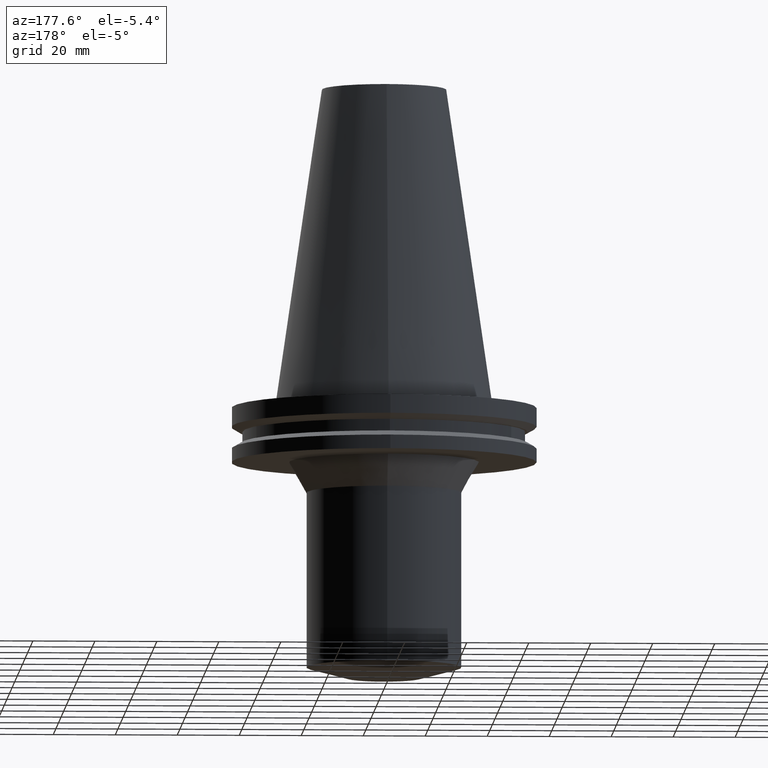
[diagram: clean part render]
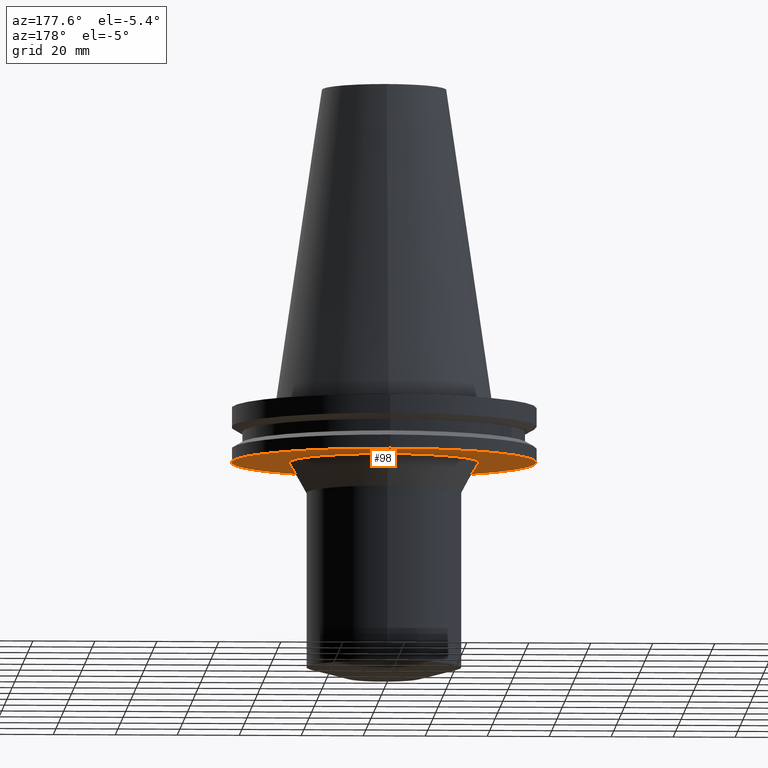
[diagram: same view with one face highlighted and labeled with its STEP entity id]
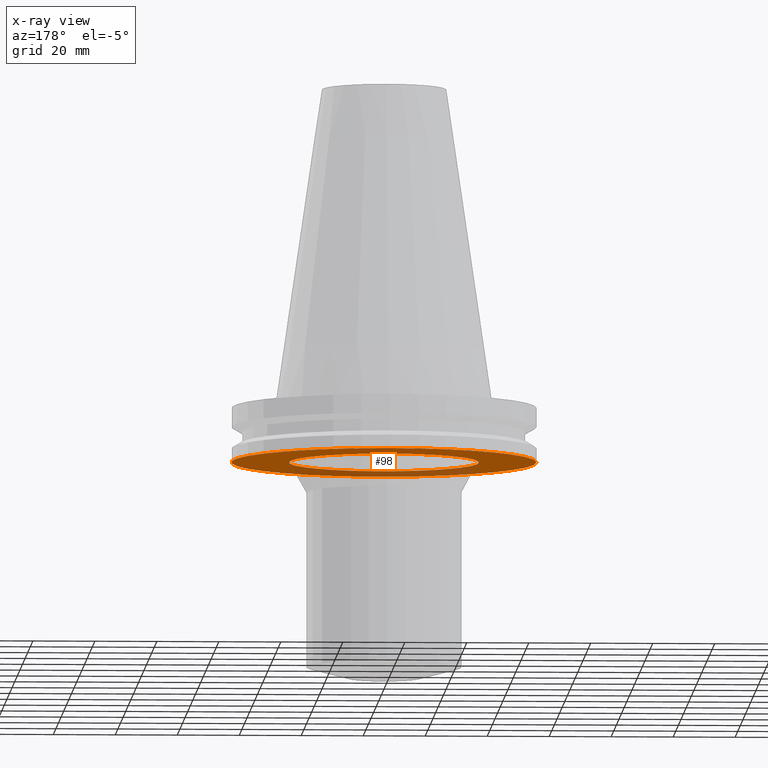
[diagram: x-ray of the same camera — body ghosted, the highlighted face saturated]
A machine part, auxiliary view. The second image highlights one B-rep face of the part: STEP entity #98.
The next image is the same camera in x-ray: the body ghosted, the highlighted face saturated — about 26% of this face is hidden behind the body in this view.
In plain terms, the highlighted planar face has unit normal (0, 0, -1).
Its self-contained STEP definition (entity closure, byte-faithful):
#98=ADVANCED_FACE('Unnamed[1]',(#217,#218),#219,.T.);
#124=EDGE_CURVE('Unnamed[1]',#260,#260,#261,.T.);
#129=EDGE_CURVE('Unnamed[1]',#267,#267,#268,.T.);
#217=FACE_BOUND('',#365,.T.);
#218=FACE_OUTER_BOUND('',#366,.T.);
#219=PLANE('',#367);
#260=VERTEX_POINT('',#418);
#261=CIRCLE('',#419,30.6869001515146);
#267=VERTEX_POINT('',#427);
#268=CIRCLE('',#428,49.2125);
#365=EDGE_LOOP('',(#512));
#366=EDGE_LOOP('',(#513));
#367=AXIS2_PLACEMENT_3D('',#514,#515,#516);
#418=CARTESIAN_POINT('',(1.16647607618786E-015,30.6869001515146,-19.0500000000001));
#419=AXIS2_PLACEMENT_3D('',#562,#563,#564);
#427=CARTESIAN_POINT('',(1.16647607618785E-015,49.2125,-19.05));
#428=AXIS2_PLACEMENT_3D('',#570,#571,#572);
#512=ORIENTED_EDGE('',*,*,#124,.F.);
#513=ORIENTED_EDGE('',*,*,#129,.T.);
#514=CARTESIAN_POINT('',(1.16647607618786E-015,39.9497000757573,-19.0500000000001));
#515=DIRECTION('',(6.12323399573677E-017,6.45098048287277E-015,-1.0));
#516=DIRECTION('',(-3.99835782716378E-031,1.0,6.45098048287277E-015));
#562=CARTESIAN_POINT('',(1.16647607618786E-015,2.33295215237572E-015,-19.0500000000001));
#563=DIRECTION('',(6.12323399573677E-017,1.22464679914735E-016,-1.0));
#564=DIRECTION('',(-1.23259516440783E-032,1.0,1.22464679914735E-016));
#570=CARTESIAN_POINT('',(1.16647607618785E-015,2.33295215237571E-015,-19.05));
#571=DIRECTION('',(6.12323399573677E-017,1.22464679914735E-016,-1.0));
#572=DIRECTION('',(-1.23259516440783E-032,1.0,1.22464679914735E-016));